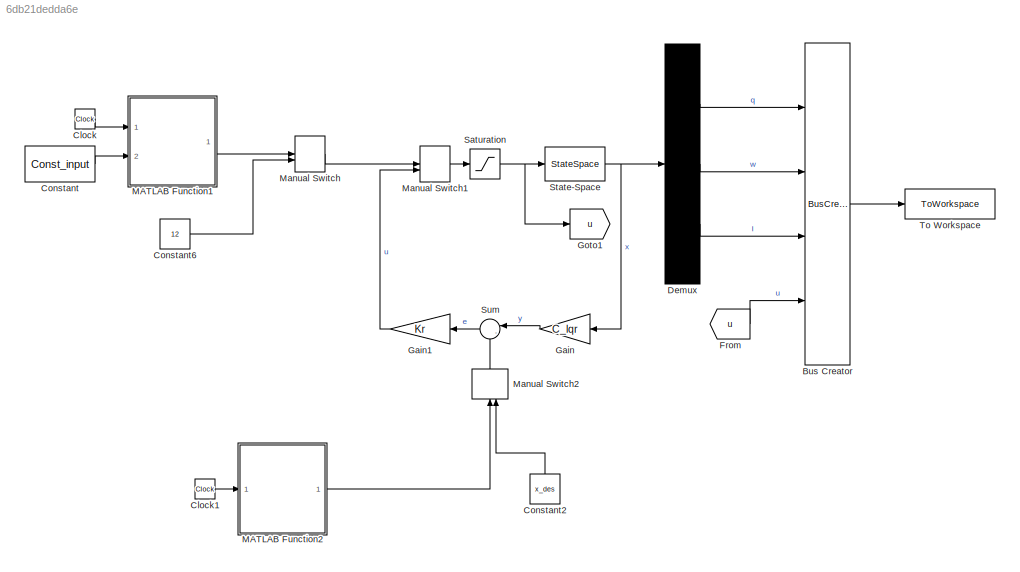
MODEL slx_6db21dedda6e
KIND model
CONFIG AbsTol = auto
CONFIG EnableMultiTasking = off
CONFIG FixedStep = 0.001
CONFIG MaxStep = auto
CONFIG MinStep = auto
CONFIG RelTol = 1e-3
CONFIG SampleTimeConstraint = Unconstrained
CONFIG SolverName = ode23t
CONFIG StartTime = 0.0
CONFIG StopTime = 10
BLOCK [BusCreator] Bus Creator
  DisplayOption = bar
  InheritFromInputs = on
  Inputs = 4
  Ports = [4, 1]
BLOCK [Clock] Clock
BLOCK [Clock] Clock1
BLOCK [Constant] Constant
  Value = Const_input
BLOCK [Constant] Constant2
  NameLocation = right
  Value = x_des
BLOCK [Constant] Constant6
  Value = 12
BLOCK [Demux] Demux
  Outputs = 3
  Ports = [1, 3]
BLOCK [From] From
  GotoTag = u
BLOCK [Gain] Gain
  Gain = C_lqr
  Multiplication = Matrix(K*u)
  NameLocation = top
BLOCK [Gain] Gain1
  Gain = Kr
  Multiplication = Matrix(K*u)
  NameLocation = top
BLOCK [Goto] Goto1
  GotoTag = u
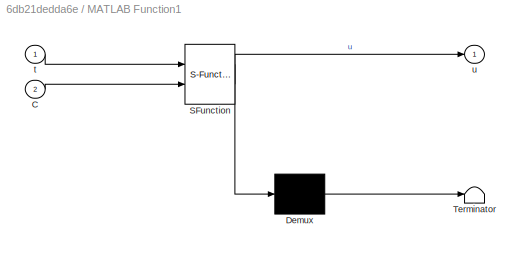
BLOCK [SubSystem] MATLAB Function1
  ErrorFcn = Stateflow.Translate.translate
  PermitHierarchicalResolution = ExplicitOnly
  Ports = [2, 1]
  RequestExecContextInheritance = off
  SFBlockType = MATLAB Function
  TreatAsAtomicUnit = on
BLOCK [Demux] MATLAB Function1/ Demux 
  Outputs = 1
  Ports = [1, 1]
BLOCK [S-Function] MATLAB Function1/ SFunction 
  EnableBusSupport = on
  FunctionName = sf_sfun
  PortCounts = [2 2]
  Ports = [2, 2]
  SFcnIsStateOwnerBlock = off
  SFunctionDeploymentMode = off
  Tag = Stateflow S-Function 2
BLOCK [Terminator] MATLAB Function1/ Terminator 
BLOCK [Inport] MATLAB Function1/C
  Port = 2
BLOCK [Inport] MATLAB Function1/t
BLOCK [Outport] MATLAB Function1/u
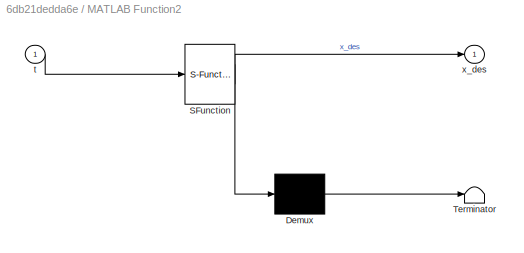
BLOCK [SubSystem] MATLAB Function2
  ErrorFcn = Stateflow.Translate.translate
  PermitHierarchicalResolution = ExplicitOnly
  Ports = [1, 1]
  RequestExecContextInheritance = off
  SFBlockType = MATLAB Function
  TreatAsAtomicUnit = on
BLOCK [Demux] MATLAB Function2/ Demux 
  Outputs = 1
  Ports = [1, 1]
BLOCK [S-Function] MATLAB Function2/ SFunction 
  EnableBusSupport = on
  FunctionName = sf_sfun
  PortCounts = [1 2]
  Ports = [1, 2]
  SFcnIsStateOwnerBlock = off
  SFunctionDeploymentMode = off
  Tag = Stateflow S-Function 1
BLOCK [Terminator] MATLAB Function2/ Terminator 
BLOCK [Inport] MATLAB Function2/t
BLOCK [Outport] MATLAB Function2/x_des
BLOCK [ManualSwitch] Manual Switch
BLOCK [ManualSwitch] Manual Switch1
  CurrentSetting = 0
BLOCK [ManualSwitch] Manual Switch2
  NameLocation = right
BLOCK [Saturate] Saturation
  LowerLimit = -15
  UpperLimit = 15
BLOCK [StateSpace] State-Space
  A = A
  B = B
  C = C
  D = D
  InitialCondition = [0 0 0]'
  Ports = [1, 1]
BLOCK [Sum] Sum
  Inputs = |-+
  NameLocation = top
  Ports = [2, 1]
BLOCK [ToWorkspace] To Workspace
  FixptAsFi = on
  MaxDataPoints = inf
  Ports = [1]
  SampleTime = -1
  SaveFormat = Timeseries
  VariableName = simout
LINE Bus Creator:1 -> To Workspace:1
LINE Clock1:1 -> MATLAB Function2:1
LINE Clock:1 -> MATLAB Function1:1
LINE Constant2:1 -> Manual Switch2:2
LINE Constant6:1 -> Manual Switch:2
LINE Constant:1 -> MATLAB Function1:2
LINE Demux:1 -> Bus Creator:1
LINE Demux:2 -> Bus Creator:2
LINE Demux:3 -> Bus Creator:3
LINE From:1 -> Bus Creator:4
LINE Gain1:1 -> Manual Switch1:2
LINE Gain:1 -> Sum:1
LINE MATLAB Function1:1 -> Manual Switch:1
LINE MATLAB Function2:1 -> Manual Switch2:1
LINE Manual Switch1:1 -> Saturation:1
LINE Manual Switch2:1 -> Sum:2
LINE Manual Switch:1 -> Manual Switch1:1
NET Saturation:1 -> Goto1:1, State-Space:1
NET State-Space:1 -> Demux:1, Gain:1
LINE Sum:1 -> Gain1:1
note: NET lines group one-source signal fan-out (src -> all destinations, sorted); 1:1 wires keep LINE
CHART MATLAB Function1 states=1 transitions=1
  STATE_LABEL 'eML_blk_kernel()'
  STATE_LABEL 'SCRIPT:\nfunction u = fcn(t, C)\n\n% w = 4;\n% A = 6;\n% B = 6;\n% fi = 3.1415;\n% u = A * cos(w * t + fi) + B;\n\nw = C(3);\nA = C(1);\nB = C(2);\nfi = C(4);\nu = A * cos(w * t + fi) + B;\n'
CHART MATLAB Function2 states=1 transitions=1
  STATE_LABEL 'eML_blk_kernel()'
  STATE_LABEL "SCRIPT:\nfunction x_des = fcn(t)\n\nw = 2;\nA = 400;\nB = A;\nfi = 3.1415;\n% w_des = A * cos(w * t + fi) + B;\nw_des = -A*w * sin(w * t + fi);\n\nw = 2;\nA = 400;\nB = A;\nfi = 3.1415;\nq_des = A * cos(w * t + fi) + B;\n\n% x_des = [0 w_des 0]';\n% x_des = [q_des 0 0]';\nx_des = [q_des w_des 0]';\n"
CHART  states=0 transitions=0
CHART  states=0 transitions=0
